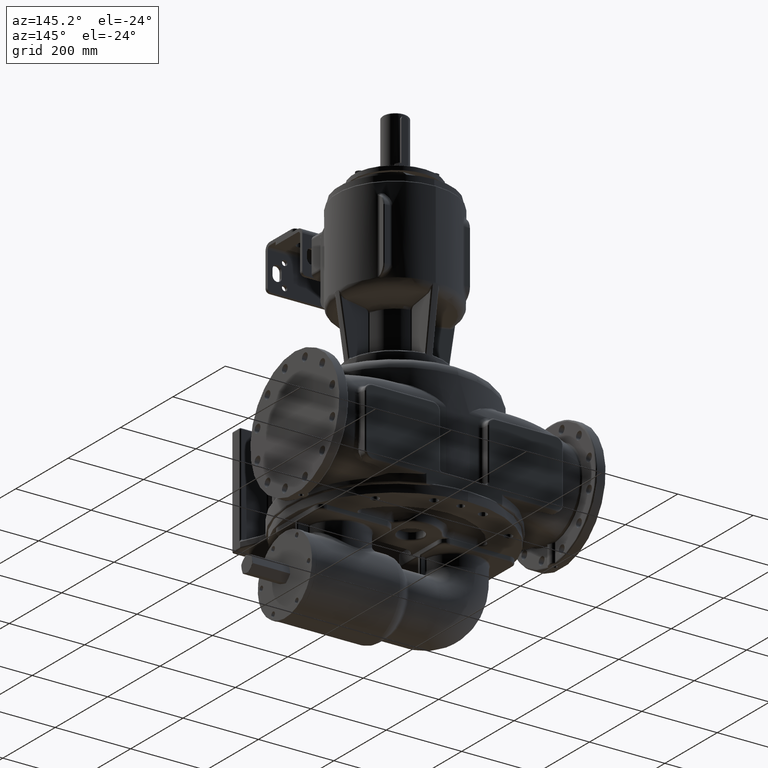
[diagram: clean part render]
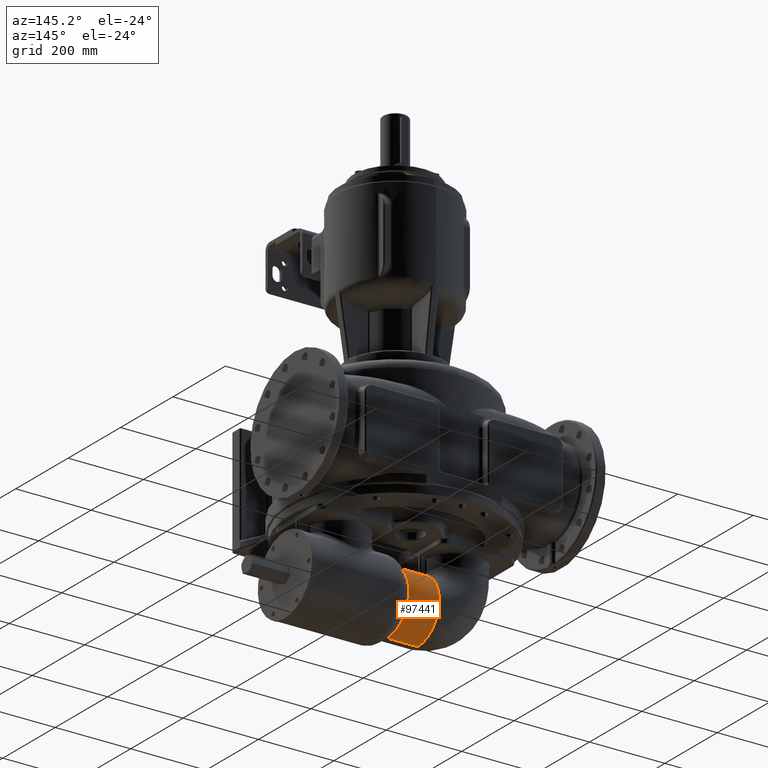
[diagram: same view with one face highlighted and labeled with its STEP entity id]
A machine part, auxiliary view. The second image highlights one B-rep face of the part: STEP entity #97441.
In plain terms, the highlighted cylindrical surface (partial cylindrical patch) has radius 82 mm, axis along (1, 0, 0).
Its self-contained STEP definition (entity closure, byte-faithful):
#26876=CARTESIAN_POINT('',(-5.9E1,3.239069767442E2,-2.195221771471E2));
#26877=CARTESIAN_POINT('',(-5.900000002581E1,3.239772628167E2,
-2.195238121455E2));
#26878=CARTESIAN_POINT('',(-5.900232723737E1,3.241177988641E2,
-2.195272621169E2));
#26879=CARTESIAN_POINT('',(-5.901281274586E1,3.243286230881E2,
-2.195329802660E2));
#26880=CARTESIAN_POINT('',(-5.903028968999E1,3.245390765941E2,
-2.195392299149E2));
#26881=CARTESIAN_POINT('',(-5.905474927254E1,3.247489984650E2,
-2.195460027271E2));
#26882=CARTESIAN_POINT('',(-5.908618633270E1,3.249582253147E2,
-2.195532889269E2));
#26883=CARTESIAN_POINT('',(-5.912458566585E1,3.251665544161E2,
-2.195610754823E2));
#26884=CARTESIAN_POINT('',(-5.916993227243E1,3.253738076026E2,
-2.195693483406E2));
#26885=CARTESIAN_POINT('',(-5.922220568795E1,3.255797956382E2,
-2.195780912182E2));
#26886=CARTESIAN_POINT('',(-5.928138255550E1,3.257843330911E2,
-2.195872861508E2));
#26887=CARTESIAN_POINT('',(-5.934743351663E1,3.259872266123E2,
-2.195969130105E2));
#26888=CARTESIAN_POINT('',(-5.942032469140E1,3.261882836690E2,
-2.196069498826E2));
#26889=CARTESIAN_POINT('',(-5.950002149109E1,3.263873197686E2,
-2.196173734647E2));
#26890=CARTESIAN_POINT('',(-5.958647614741E1,3.265841282787E2,
-2.196281577642E2));
#26891=CARTESIAN_POINT('',(-5.967962386089E1,3.267784831388E2,
-2.196392730950E2));
#26892=CARTESIAN_POINT('',(-5.977944434648E1,3.269702628186E2,
-2.196506965915E2));
#26893=CARTESIAN_POINT('',(-5.988592598593E1,3.271593309736E2,
-2.196623945738E2));
#26894=CARTESIAN_POINT('',(-5.996123244227E1,3.272833508969E2,
-2.196703675521E2));
#26895=CARTESIAN_POINT('',(-5.999999999996E1,3.273448578258E2,
-2.196743854261E2));
#26897=CARTESIAN_POINT('',(-6.E1,3.22E2,-3.015E2));
#26898=DIRECTION('',(1.E0,0.E0,0.E0));
#26899=DIRECTION('',(0.E0,0.E0,-1.E0));
#26900=AXIS2_PLACEMENT_3D('',#26897,#26898,#26899);
#26902=CARTESIAN_POINT('',(2.085786437627E1,3.22E2,-3.015E2));
#26903=DIRECTION('',(1.E0,0.E0,0.E0));
#26904=DIRECTION('',(0.E0,0.E0,-1.E0));
#26905=AXIS2_PLACEMENT_3D('',#26902,#26903,#26904);
#26907=CARTESIAN_POINT('',(-5.9E1,3.22E2,-3.015E2));
#26908=DIRECTION('',(-1.E0,0.E0,0.E0));
#26909=DIRECTION('',(0.E0,0.E0,1.E0));
#26910=AXIS2_PLACEMENT_3D('',#26907,#26908,#26909);
#26932=DIRECTION('',(-1.E0,0.E0,0.E0));
#26933=VECTOR('',#26932,7.985786437627E1);
#26934=CARTESIAN_POINT('',(2.085786437627E1,3.22E2,-2.195E2));
#26935=LINE('',#26934,#26933);
#26941=DIRECTION('',(-1.E0,0.E0,0.E0));
#26942=VECTOR('',#26941,8.085786437627E1);
#26943=CARTESIAN_POINT('',(2.085786437627E1,3.22E2,-3.835E2));
#26944=LINE('',#26943,#26942);
#27263=CARTESIAN_POINT('',(-6.E1,3.22E2,-3.835E2));
#27265=CARTESIAN_POINT('',(-5.999999999996E1,3.273448578258E2,
-2.196743854261E2));
#37507=VERTEX_POINT('',#27263);
#37508=CARTESIAN_POINT('',(2.085786437627E1,3.22E2,-2.195E2));
#37509=CARTESIAN_POINT('',(2.085786437627E1,3.22E2,-3.835E2));
#37510=VERTEX_POINT('',#37508);
#37511=VERTEX_POINT('',#37509);
#37724=VERTEX_POINT('',#27265);
#37726=VERTEX_POINT('',#26876);
#37728=CARTESIAN_POINT('',(-5.9E1,3.22E2,-2.195E2));
#37729=VERTEX_POINT('',#37728);
#97423=CARTESIAN_POINT('',(-7.715E1,3.22E2,-3.015E2));
#97424=DIRECTION('',(1.E0,0.E0,0.E0));
#97425=DIRECTION('',(0.E0,0.E0,1.E0));
#97426=AXIS2_PLACEMENT_3D('',#97423,#97424,#97425);
#97427=CYLINDRICAL_SURFACE('',#97426,8.2E1);
#97429=ORIENTED_EDGE('',*,*,#97428,.T.);
#97431=ORIENTED_EDGE('',*,*,#97430,.F.);
#97433=ORIENTED_EDGE('',*,*,#97432,.F.);
#97434=ORIENTED_EDGE('',*,*,#97413,.T.);
#97436=ORIENTED_EDGE('',*,*,#97435,.T.);
#97438=ORIENTED_EDGE('',*,*,#97437,.T.);
#97439=EDGE_LOOP('',(#97429,#97431,#97433,#97434,#97436,#97438));
#97440=FACE_OUTER_BOUND('',#97439,.F.);
#97441=ADVANCED_FACE('',(#97440),#97427,.T.);
#26896=B_SPLINE_CURVE_WITH_KNOTS('',3,(#26876,#26877,#26878,#26879,#26880,
#26881,#26882,#26883,#26884,#26885,#26886,#26887,#26888,#26889,#26890,#26891,
#26892,#26893,#26894,#26895),.UNSPECIFIED.,.F.,.F.,(4,1,1,1,1,1,1,1,1,1,1,1,1,1,
1,1,1,4),(0.E0,5.882352941176E-2,1.176470588235E-1,1.764705882353E-1,
2.352941176471E-1,2.941176470588E-1,3.529411764706E-1,4.117647058824E-1,
4.705882352941E-1,5.294117647059E-1,5.882352941176E-1,6.470588235294E-1,
7.058823529412E-1,7.647058823529E-1,8.235294117647E-1,8.823529411765E-1,
9.411764705882E-1,1.E0),.UNSPECIFIED.);
#26901=CIRCLE('',#26900,8.2E1);
#26906=CIRCLE('',#26905,8.2E1);
#26911=CIRCLE('',#26910,8.2E1);
#97413=EDGE_CURVE('',#37511,#37510,#26906,.T.);
#97428=EDGE_CURVE('',#37726,#37724,#26896,.T.);
#97430=EDGE_CURVE('',#37507,#37724,#26901,.T.);
#97432=EDGE_CURVE('',#37511,#37507,#26944,.T.);
#97435=EDGE_CURVE('',#37510,#37729,#26935,.T.);
#97437=EDGE_CURVE('',#37729,#37726,#26911,.T.);